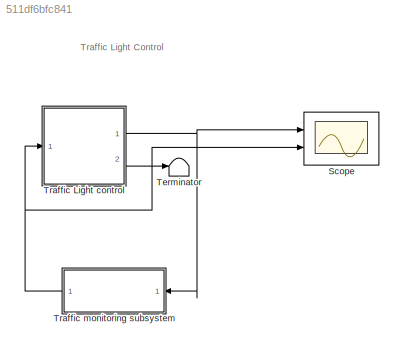
MODEL slx_511df6bfc841
KIND model
CONFIG AbsTol = auto
CONFIG EnableMultiTasking = on
CONFIG FixedStep = .1
CONFIG MaxStep = auto
CONFIG MinStep = auto
CONFIG RelTol = 1e-3
CONFIG SampleTimeConstraint = Unconstrained
CONFIG SolverName = FixedStepDiscrete
CONFIG StartTime = 0.0
CONFIG StopTime = 150
BLOCK [Scope] Scope
  Floating = off
  NumInputPorts = 2
  Ports = [2]
  ScopeSpecificationString = Simulink.scopes.TimeScopeBlockCfg('CurrentConfiguration', extmgr.ConfigurationSet(extmgr.Configuration('Core','General UI',true),extmgr.Configuration('Core','Source UI',true),extmgr.Configuration('Sources','WiredSimulink',true),extmgr.Configuration('Visuals','Time Domain',true,'SerializedDisplays',{struct('MinYLimReal','0.75','MaxYLimReal','3.25','YLabelReal','','MinYLimMag','0.75','MaxYLimMag','3...<+2051ch>
BLOCK [Terminator] Terminator
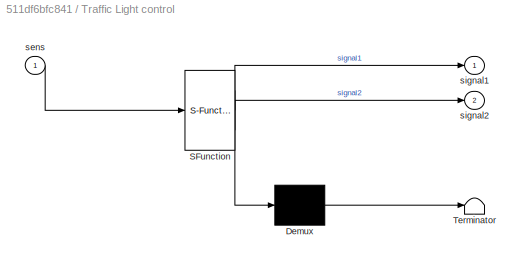
BLOCK [SubSystem] Traffic Light control
  ErrorFcn = Stateflow.Translate.translate
  PermitHierarchicalResolution = ExplicitOnly
  Ports = [1, 2]
  RequestExecContextInheritance = off
  SFBlockType = Chart
  TreatAsAtomicUnit = on
BLOCK [Demux] Traffic Light control/ Demux 
  Outputs = 1
  Ports = [1, 1]
BLOCK [S-Function] Traffic Light control/ SFunction 
  EnableBusSupport = on
  FunctionName = sf_sfun
  PortCounts = [1 3]
  Ports = [1, 3]
  SFcnIsStateOwnerBlock = off
  SFunctionDeploymentMode = off
  Tag = Stateflow S-Function 3
BLOCK [Terminator] Traffic Light control/ Terminator 
BLOCK [Inport] Traffic Light control/sens
BLOCK [Outport] Traffic Light control/signal1
BLOCK [Outport] Traffic Light control/signal2
  Port = 2
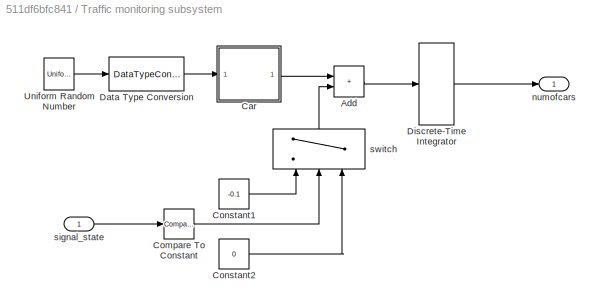
BLOCK [SubSystem] Traffic monitoring subsystem
  NameLocation = top
  Ports = [1, 1]
  RequestExecContextInheritance = off
BLOCK [Sum] Traffic monitoring subsystem/Add
  IconShape = rectangular
  OutDataTypeStr = double
  Ports = [2, 1]
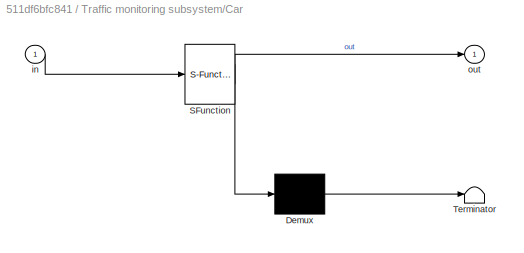
BLOCK [SubSystem] Traffic monitoring subsystem/Car
  ErrorFcn = Stateflow.Translate.translate
  PermitHierarchicalResolution = ExplicitOnly
  Ports = [1, 1]
  RequestExecContextInheritance = off
  SFBlockType = Chart
  TreatAsAtomicUnit = on
BLOCK [Demux] Traffic monitoring subsystem/Car/ Demux 
  Outputs = 1
  Ports = [1, 1]
BLOCK [S-Function] Traffic monitoring subsystem/Car/ SFunction 
  EnableBusSupport = on
  FunctionName = sf_sfun
  PortCounts = [1 2]
  Ports = [1, 2]
  SFcnIsStateOwnerBlock = off
  SFunctionDeploymentMode = off
  Tag = Stateflow S-Function 4
BLOCK [Terminator] Traffic monitoring subsystem/Car/ Terminator 
BLOCK [Inport] Traffic monitoring subsystem/Car/in
BLOCK [Outport] Traffic monitoring subsystem/Car/out
  VectorParamsAs1DForOutWhenUnconnected = off
BLOCK [Reference] Traffic monitoring subsystem/Compare To Constant  REF=simulink/Logic and Bit
Operations/Compare
To Constant
  Ports = [1, 1]
  SourceBlock = simulink/Logic and Bit\nOperations/Compare\nTo Constant
  SourceProductBaseCode = SL
  SourceType = Compare To Constant
BLOCK [Constant] Traffic monitoring subsystem/Constant1
  OutDataTypeStr = double
  Value = -0.1
BLOCK [Constant] Traffic monitoring subsystem/Constant2
  OutDataTypeStr = double
  Value = 0
BLOCK [DataTypeConversion] Traffic monitoring subsystem/Data Type Conversion
  OutDataTypeStr = int8
  RndMeth = Nearest
BLOCK [DiscreteIntegrator] Traffic monitoring subsystem/Discrete-Time Integrator
  ICPrevOutput = DiscIntNeverNeededParam
  ICPrevScaledInput = DiscIntNeverNeededParam
  LimitOutput = on
  LowerSaturationLimit = 0
  OutDataTypeStr = double
  Ports = [1, 1]
  SampleTime = -1
BLOCK [UniformRandomNumber] Traffic monitoring subsystem/Uniform Random Number
  Maximum = 100
  Minimum = 0
  SampleTime = 0
  Seed = 177836
BLOCK [Outport] Traffic monitoring subsystem/numofcars
  OutDataTypeStr = double
  VectorParamsAs1DForOutWhenUnconnected = off
BLOCK [Inport] Traffic monitoring subsystem/signal_state
  OutDataTypeStr = double
BLOCK [Switch] Traffic monitoring subsystem/switch
  Criteria = u2 ~= 0
  InputSameDT = off
  NameLocation = right
  OutDataTypeStr = double
  SaturateOnIntegerOverflow = off
ANNOTATION (root): Traffic Light Control
NET Traffic Light control:1 -> Scope:1, Traffic monitoring subsystem:1
LINE Traffic Light control:2 -> Terminator:1
LINE Traffic monitoring subsystem/Add:1 -> Traffic monitoring subsystem/Discrete-Time Integrator:1
LINE Traffic monitoring subsystem/Car:1 -> Traffic monitoring subsystem/Add:1
LINE Traffic monitoring subsystem/Compare To Constant:1 -> Traffic monitoring subsystem/switch:2
LINE Traffic monitoring subsystem/Constant1:1 -> Traffic monitoring subsystem/switch:1
LINE Traffic monitoring subsystem/Constant2:1 -> Traffic monitoring subsystem/switch:3
LINE Traffic monitoring subsystem/Data Type Conversion:1 -> Traffic monitoring subsystem/Car:1
LINE Traffic monitoring subsystem/Discrete-Time Integrator:1 -> Traffic monitoring subsystem/numofcars:1
LINE Traffic monitoring subsystem/Uniform Random Number:1 -> Traffic monitoring subsystem/Data Type Conversion:1
LINE Traffic monitoring subsystem/signal_state:1 -> Traffic monitoring subsystem/Compare To Constant:1
LINE Traffic monitoring subsystem/switch:1 -> Traffic monitoring subsystem/Add:2
NET Traffic monitoring subsystem:1 -> Scope:2, Traffic Light control:1
note: NET lines group one-source signal fan-out (src -> all destinations, sorted); 1:1 wires keep LINE
CHART Traffic Light control states=5 transitions=6
  STATE_LABEL 'Stop\nsignal1 = RED;\nsignal2 = GREEN;'
  STATE_LABEL 'Stop_traffic\nsignal1 = RED;\nsignal2 = GREEN;'
  STATE_LABEL 'Stop_move\nsignal1 = RED;\nsignal2 = YELLOW;'
  STATE_LABEL 'Move\nsignal1 = GREEN;\nsignal2 = RED;'
  STATE_LABEL 'Move_stop\nsignal1 = YELLOW;\nsignal2 = RED;'
CHART Traffic monitoring subsystem/Car states=0 transitions=1
CHART  states=0 transitions=0
CHART  states=0 transitions=0
